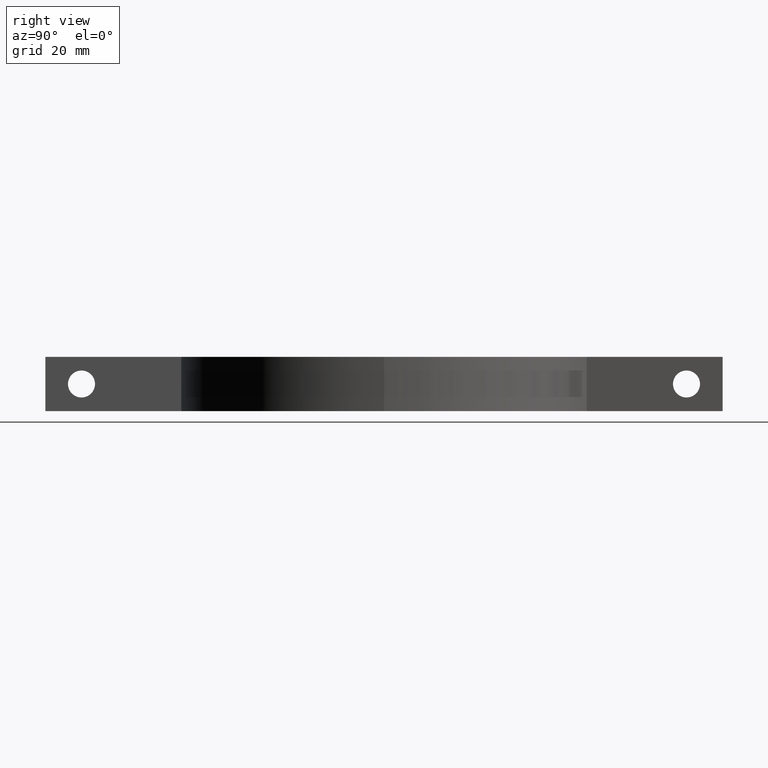
[diagram: clean part render]
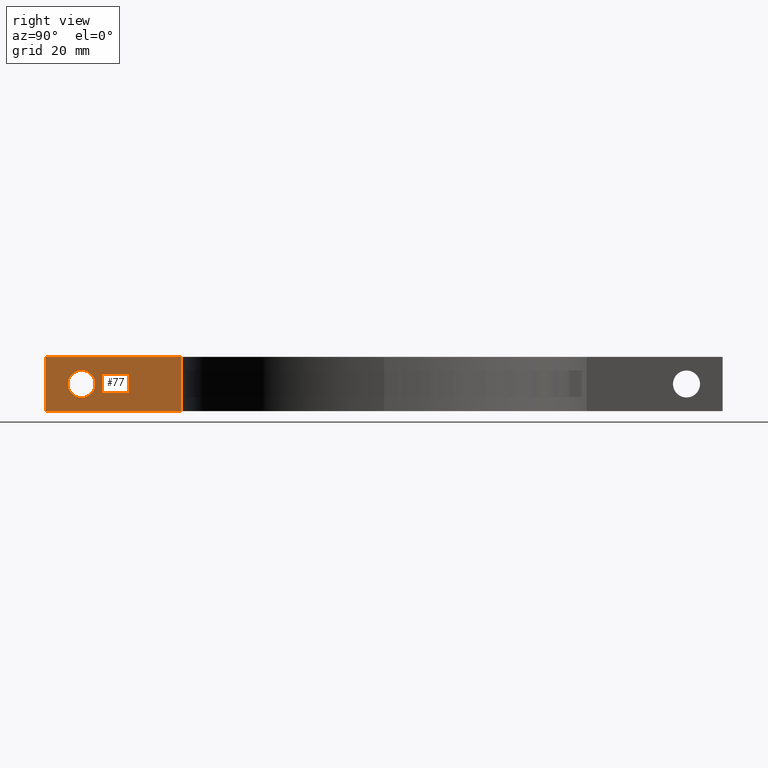
[diagram: same view with one face highlighted and labeled with its STEP entity id]
A machine part, right view. The second image highlights one B-rep face of the part: STEP entity #77.
In plain terms, the highlighted planar face has unit normal (-1, 0, 0).
Its self-contained STEP definition (entity closure, byte-faithful):
#13 = CARTESIAN_POINT ( 'NONE',  ( 60.00000000000000000, -75.00000000000001400, -6.000000000000000000 ) ) ;
#60 = DIRECTION ( 'NONE',  ( 2.305271838105247500E-016, 1.000000000000000000, 0.0000000000000000000 ) ) ;
#64 = DIRECTION ( 'NONE',  ( -0.0000000000000000000, -0.0000000000000000000, -1.000000000000000000 ) ) ;
#70 = DIRECTION ( 'NONE',  ( 0.0000000000000000000, 0.0000000000000000000, -1.000000000000000000 ) ) ;
#71 = DIRECTION ( 'NONE',  ( 1.000000000000000000, 0.0000000000000000000, 0.0000000000000000000 ) ) ;
#77 = ADVANCED_FACE ( 'NONE', ( #328, #312 ), #548, .F. ) ;
#89 = CARTESIAN_POINT ( 'NONE',  ( 60.00000000000001400, -67.00000000000001400, -6.123233995736806700E-016 ) ) ;
#91 = CARTESIAN_POINT ( 'NONE',  ( 60.00000000000000000, -75.00000000000001400, -6.000000000000000000 ) ) ;
#94 = CARTESIAN_POINT ( 'NONE',  ( 60.00000000000000700, -44.89988864128729800, 6.000000000000000000 ) ) ;
#96 = CARTESIAN_POINT ( 'NONE',  ( 60.00000000000000000, -75.00000000000001400, 6.000000000000000000 ) ) ;
#98 = DIRECTION ( 'NONE',  ( 2.305271838105247500E-016, 1.000000000000000000, 0.0000000000000000000 ) ) ;
#103 = DIRECTION ( 'NONE',  ( -0.0000000000000000000, -0.0000000000000000000, -1.000000000000000000 ) ) ;
#111 = CARTESIAN_POINT ( 'NONE',  ( 60.00000000000000000, -75.00000000000001400, 6.000000000000000000 ) ) ;
#115 = CARTESIAN_POINT ( 'NONE',  ( 60.00000000000001400, -67.00000000000001400, 3.000000000000002200 ) ) ;
#164 = CIRCLE ( 'NONE', #237, 3.000000000000002700 ) ;
#234 = VECTOR ( 'NONE', #60, 1000.000000000000000 ) ;
#236 = VECTOR ( 'NONE', #64, 1000.000000000000000 ) ;
#237 = AXIS2_PLACEMENT_3D ( 'NONE', #396, #387, #382 ) ;
#239 = VECTOR ( 'NONE', #98, 1000.000000000000000 ) ;
#240 = LINE ( 'NONE', #96, #234 ) ;
#241 = LINE ( 'NONE', #94, #236 ) ;
#243 = LINE ( 'NONE', #91, #239 ) ;
#244 = EDGE_LOOP ( 'NONE', ( #679, #608, #324, #349 ) ) ;
#245 = VECTOR ( 'NONE', #103, 1000.000000000000000 ) ;
#249 = LINE ( 'NONE', #111, #245 ) ;
#266 = CIRCLE ( 'NONE', #317, 3.000000000000002700 ) ;
#312 = FACE_OUTER_BOUND ( 'NONE', #244, .T. ) ;
#317 = AXIS2_PLACEMENT_3D ( 'NONE', #89, #71, #70 ) ;
#324 = ORIENTED_EDGE ( 'NONE', *, *, #498, .F. ) ;
#328 = FACE_BOUND ( 'NONE', #337, .T. ) ;
#337 = EDGE_LOOP ( 'NONE', ( #547, #452 ) ) ;
#349 = ORIENTED_EDGE ( 'NONE', *, *, #483, .T. ) ;
#360 = VERTEX_POINT ( 'NONE', #564 ) ;
#374 = VERTEX_POINT ( 'NONE', #595 ) ;
#382 = DIRECTION ( 'NONE',  ( 0.0000000000000000000, 0.0000000000000000000, -1.000000000000000000 ) ) ;
#387 = DIRECTION ( 'NONE',  ( 1.000000000000000000, 0.0000000000000000000, 0.0000000000000000000 ) ) ;
#396 = CARTESIAN_POINT ( 'NONE',  ( 60.00000000000001400, -67.00000000000001400, -6.123233995736806700E-016 ) ) ;
#414 = VERTEX_POINT ( 'NONE', #439 ) ;
#423 = AXIS2_PLACEMENT_3D ( 'NONE', #562, #619, #495 ) ;
#439 = CARTESIAN_POINT ( 'NONE',  ( 60.00000000000001400, -67.00000000000001400, -3.000000000000003100 ) ) ;
#452 = ORIENTED_EDGE ( 'NONE', *, *, #581, .F. ) ;
#483 = EDGE_CURVE ( 'NONE', #374, #541, #249, .T. ) ;
#491 = EDGE_CURVE ( 'NONE', #414, #625, #266, .T. ) ;
#493 = EDGE_CURVE ( 'NONE', #541, #360, #243, .T. ) ;
#495 = DIRECTION ( 'NONE',  ( -2.305271838105247500E-016, -1.000000000000000000, 0.0000000000000000000 ) ) ;
#496 = EDGE_CURVE ( 'NONE', #720, #360, #241, .T. ) ;
#498 = EDGE_CURVE ( 'NONE', #374, #720, #240, .T. ) ;
#541 = VERTEX_POINT ( 'NONE', #13 ) ;
#547 = ORIENTED_EDGE ( 'NONE', *, *, #491, .F. ) ;
#548 = PLANE ( 'NONE',  #423 ) ;
#562 = CARTESIAN_POINT ( 'NONE',  ( 60.00000000000000000, -75.00000000000001400, 6.000000000000000000 ) ) ;
#564 = CARTESIAN_POINT ( 'NONE',  ( 60.00000000000000700, -44.89988864128729800, -6.000000000000000000 ) ) ;
#572 = CARTESIAN_POINT ( 'NONE',  ( 60.00000000000000700, -44.89988864128729800, 6.000000000000000000 ) ) ;
#581 = EDGE_CURVE ( 'NONE', #625, #414, #164, .T. ) ;
#595 = CARTESIAN_POINT ( 'NONE',  ( 60.00000000000000000, -75.00000000000001400, 6.000000000000000000 ) ) ;
#608 = ORIENTED_EDGE ( 'NONE', *, *, #496, .F. ) ;
#619 = DIRECTION ( 'NONE',  ( -1.000000000000000000, 2.305271838105247500E-016, 0.0000000000000000000 ) ) ;
#625 = VERTEX_POINT ( 'NONE', #115 ) ;
#679 = ORIENTED_EDGE ( 'NONE', *, *, #493, .T. ) ;
#720 = VERTEX_POINT ( 'NONE', #572 ) ;